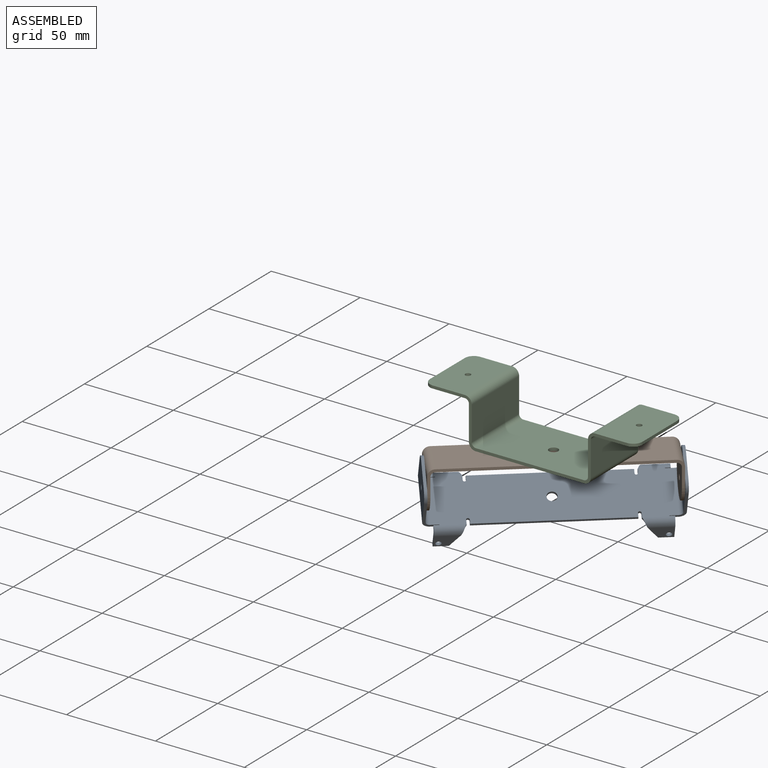
[diagram: assembled view]
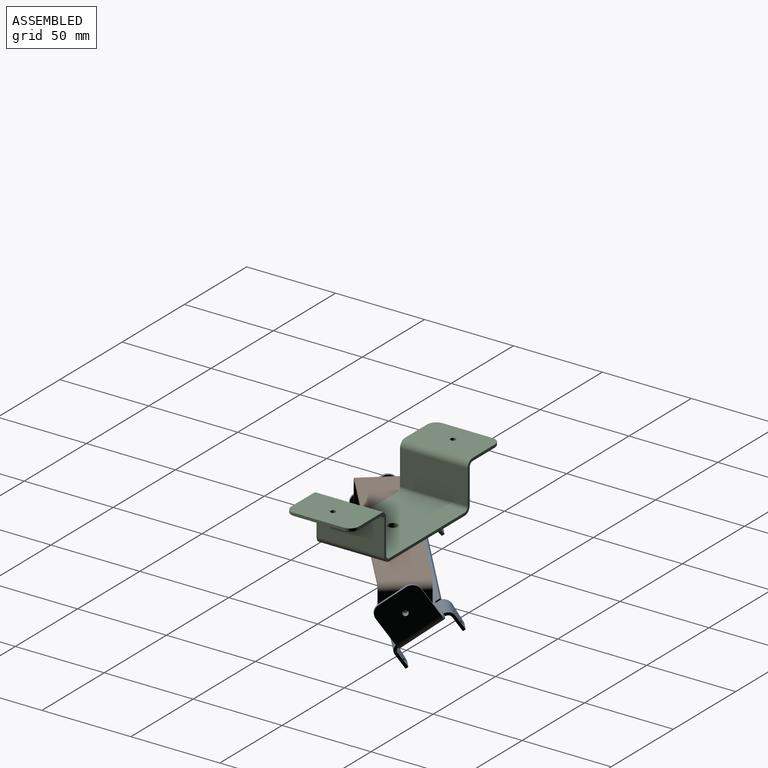
[diagram: assembled view, second angle]
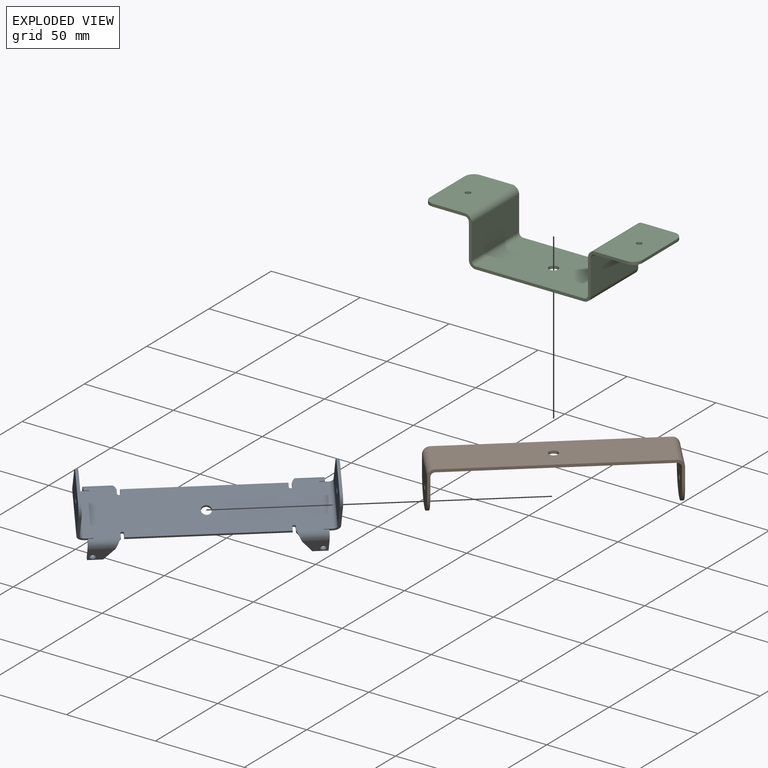
[diagram: exploded view]
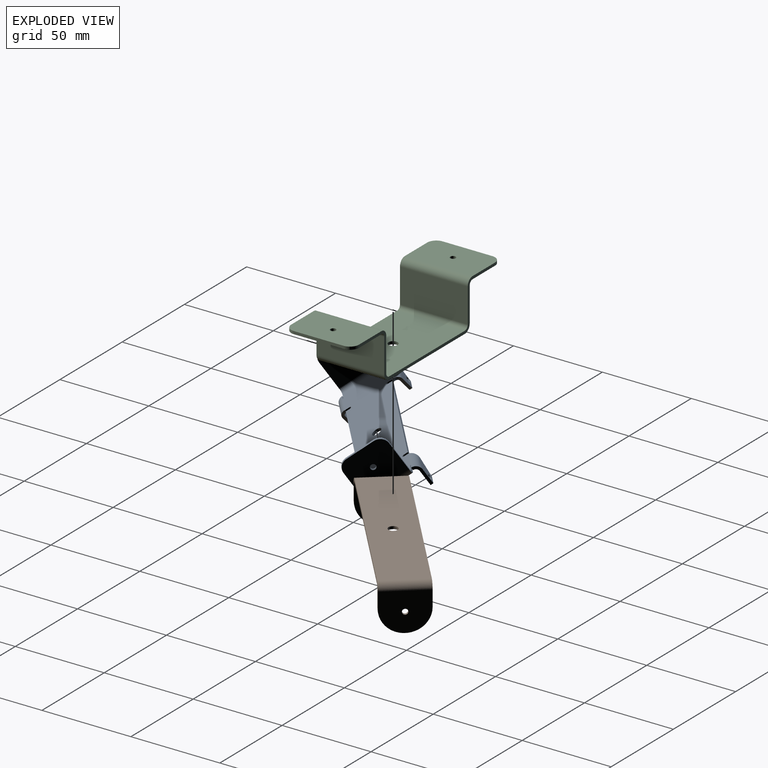
[diagram: exploded view, second angle]
ASSEMBLY  parts=3 mates=2
PART A: 93 faces, bbox 122.4x33.5x36.6 mm
  f0: plane 77.86x1.52mm, normal (0,-1,0), area 118.7mm2, adj f2,f3,f14,f18
  f1: plane 77.86x1.52mm, normal (0,1,0), area 118.7mm2, adj f2,f3,f20,f24
  f2: plane 114.81x25.91mm, normal (0,0,1), area 2930.4mm2, adj f0,f1,f4,f5,f6,f7,f8,f9
  f3: plane 114.81x25.91mm, normal (0,0,-1), area 2930.4mm2, adj f0,f1,f4,f5,f6,f7,f8,f9
  f4: cylinder r=0.81mm len=1.52mm, axis (0,0,1), area 1mm2, adj f2,f3,f5,f78
  f5: plane 3.81x1.52mm, normal (0,-1,0), area 5.8mm2, adj f2,f3,f4,f45
  f6: plane 3.81x1.52mm, normal (0,1,0), area 5.8mm2, adj f2,f3,f7,f46
  f7: cylinder r=0.81mm len=1.52mm, axis (0,0,1), area 1mm2, adj f2,f3,f6,f66
  f8: cylinder r=0.81mm len=1.52mm, axis (0,0,1), area 1mm2, adj f2,f3,f9,f56
  f9: plane 3.81x1.52mm, normal (0,1,0), area 5.8mm2, adj f2,f3,f8,f34
  f10: plane 3.81x1.52mm, normal (0,-1,0), area 5.8mm2, adj f2,f3,f11,f33
  f11: cylinder r=0.81mm len=1.52mm, axis (0,0,1), area 1mm2, adj f2,f3,f10,f88
  f12: cylinder r=2.58mm len=5.16mm, axis (0,0,1), area 24.7mm2, adj f2,f3
  f13: cylinder r=0.81mm len=1.62mm, axis (0,0,-1), area 3.9mm2, adj f2,f3,f14,f15
  f14: plane 2.29x1.52mm, normal (-1,0,0), area 3.5mm2, adj f0,f2,f3,f13
  f15: plane 2.29x1.52mm, normal (1,0,0), area 3.5mm2, adj f2,f3,f13,f90
  f16: cylinder r=0.81mm len=1.62mm, axis (0,0,-1), area 3.9mm2, adj f2,f3,f17,f18
  f17: plane 2.29x1.52mm, normal (-1,0,0), area 3.5mm2, adj f2,f3,f16,f79
  f18: plane 2.29x1.52mm, normal (1,0,0), area 3.5mm2, adj f0,f2,f3,f16
  f19: cylinder r=0.81mm len=1.62mm, axis (0,0,-1), area 3.9mm2, adj f2,f3,f20,f21
  f20: plane 2.29x1.52mm, normal (1,0,0), area 3.5mm2, adj f1,f2,f3,f19
  f21: plane 2.29x1.52mm, normal (-1,0,0), area 3.5mm2, adj f2,f3,f19,f68
  f22: cylinder r=0.81mm len=1.62mm, axis (0,0,-1), area 3.9mm2, adj f2,f3,f23,f24
  f23: plane 2.29x1.52mm, normal (1,0,0), area 3.5mm2, adj f2,f3,f22,f57
  f24: plane 2.29x1.52mm, normal (-1,0,0), area 3.5mm2, adj f1,f2,f3,f22
  f25: plane 16.51x1.52mm, normal (0,1,0), area 25.2mm2, adj f29,f30,f32,f34
  f26: plane 15.24x1.52mm, normal (0,0,1), area 23.2mm2, adj f29,f30,f31,f32
  f27: plane 16.51x1.52mm, normal (0,-1,0), area 25.2mm2, adj f29,f30,f31,f33
  f28: cylinder r=1.52mm len=3.05mm, axis (1,0,0), area 14.6mm2, adj f29,f30
  f29: plane 25.4x21.59mm, normal (1,0,0), area 530mm2, adj f25,f26,f27,f28,f31,f32,f35
  f30: plane 25.4x21.59mm, normal (-1,0,0), area 530mm2, adj f25,f26,f27,f28,f31,f32,f36
  f31: cylinder r=5.08mm len=5.08mm, axis (1,0,0), area 12.2mm2, adj f26,f27,f29,f30
  f32: cylinder r=5.08mm len=5.08mm, axis (1,0,0), area 12.2mm2, adj f25,f26,f29,f30
  f33: plane 3.81x3.81mm, normal (0,-1,0), area 7.3mm2, adj f10,f27,f35,f36
  f34: plane 3.81x3.81mm, normal (0,1,0), area 7.3mm2, adj f9,f25,f35,f36
  f35: cylinder r=2.29mm len=25.4mm, axis (0,-1,0), area 91.2mm2, adj f2,f29,f33,f34
  f36: cylinder r=3.81mm len=25.4mm, axis (0,-1,0), area 152mm2, adj f3,f30,f33,f34
  f37: plane 16.51x1.52mm, normal (0,1,0), area 25.2mm2, adj f41,f42,f44,f46
  f38: plane 16.51x1.52mm, normal (0,-1,0), area 25.2mm2, adj f41,f42,f43,f45
  f39: cylinder r=1.52mm len=3.05mm, axis (-1,0,0), area 14.6mm2, adj f41,f42
  f40: plane 15.24x1.52mm, normal (0,0,1), area 23.2mm2, adj f41,f42,f43,f44
  f41: plane 25.4x21.59mm, normal (-1,0,0), area 530mm2, adj f37,f38,f39,f40,f43,f44,f47
  f42: plane 25.4x21.59mm, normal (1,0,0), area 530mm2, adj f37,f38,f39,f40,f43,f44,f48
  f43: cylinder r=5.08mm len=5.08mm, axis (1,0,0), area 12.2mm2, adj f38,f40,f41,f42
  f44: cylinder r=5.08mm len=5.08mm, axis (1,0,0), area 12.2mm2, adj f37,f40,f41,f42
  f45: plane 3.81x3.81mm, normal (0,-1,0), area 7.3mm2, adj f5,f38,f47,f48
  f46: plane 3.81x3.81mm, normal (0,1,0), area 7.3mm2, adj f6,f37,f47,f48
  f47: cylinder r=2.29mm len=25.4mm, axis (0,-1,0), area 91.2mm2, adj f2,f41,f45,f46
  f48: cylinder r=3.81mm len=25.4mm, axis (0,-1,0), area 152mm2, adj f3,f42,f45,f46
  f49: plane 8.89x1.52mm, normal (-1,0,0), area 13.5mm2, adj f52,f53,f54,f55
  f50: plane 8.89x5.13mm, normal (0.87,0,-0.5), area 15.6mm2, adj f52,f53,f54,f57
  f51: cylinder r=1.52mm len=3.05mm, axis (0,1,0), area 14.6mm2, adj f53,f54
  f52: plane 7.5x1.52mm, normal (0,0,-1), area 11.4mm2, adj f49,f50,f53,f54
  f53: plane 12.63x8.89mm, normal (0,1,0), area 82.2mm2, adj f49,f50,f51,f52,f58
  f54: plane 12.63x8.89mm, normal (0,-1,0), area 82.2mm2, adj f49,f50,f51,f52,f59
  f55: plane 3.81x3.81mm, normal (-1,0,0), area 7.3mm2, adj f49,f56,f58,f59
  f56: plane 2.88x1.52mm, normal (0,-1,0), area 4.4mm2, adj f8,f55,f58,f59
  f57: bspline ~3.81x3.81mm, area 8.4mm2, adj f23,f50,f58,f59
  f58: cylinder r=3.81mm len=15.33mm, axis (-1,0,0), area 83.7mm2, adj f2,f53,f55,f56,f57
  f59: cylinder r=2.29mm len=15.33mm, axis (-1,0,0), area 50.2mm2, adj f3,f54,f55,f56,f57
  f60: plane 8.89x1.52mm, normal (1,0,0), area 13.5mm2, adj f61,f64,f65,f67
  f61: plane 7.5x1.52mm, normal (0,0,-1), area 11.4mm2, adj f60,f62,f64,f65
  f62: plane 8.89x5.13mm, normal (-0.87,0,-0.5), area 15.6mm2, adj f61,f64,f65,f68
  f63: cylinder r=1.52mm len=3.05mm, axis (0,1,0), area 14.6mm2, adj f64,f65
  f64: plane 12.63x8.89mm, normal (0,1,0), area 82.2mm2, adj f60,f61,f62,f63,f69
  f65: plane 12.63x8.89mm, normal (0,-1,0), area 82.2mm2, adj f60,f61,f62,f63,f70
  f66: plane 2.88x1.52mm, normal (0,-1,0), area 4.4mm2, adj f7,f67,f69,f70
  f67: plane 3.81x3.81mm, normal (1,0,0), area 7.3mm2, adj f60,f66,f69,f70
  f68: bspline ~3.81x3.81mm, area 8.4mm2, adj f21,f62,f69,f70
  f69: cylinder r=3.81mm len=15.33mm, axis (-1,0,0), area 83.7mm2, adj f2,f64,f66,f67,f68
  f70: cylinder r=2.29mm len=15.33mm, axis (-1,0,0), area 50.2mm2, adj f3,f65,f66,f67,f68
  f71: plane 7.5x1.52mm, normal (0,0,-1), area 11.4mm2, adj f72,f74,f75,f76
  f72: plane 8.89x1.52mm, normal (1,0,0), area 13.5mm2, adj f71,f75,f76,f77
  f73: cylinder r=1.52mm len=3.05mm, axis (0,-1,0), area 14.6mm2, adj f75,f76
  f74: plane 8.89x5.13mm, normal (-0.87,0,-0.5), area 15.6mm2, adj f71,f75,f76,f79
  f75: plane 12.63x8.89mm, normal (0,-1,0), area 82.2mm2, adj f71,f72,f73,f74,f80
  f76: plane 12.63x8.89mm, normal (0,1,0), area 82.2mm2, adj f71,f72,f73,f74,f81
  f77: plane 3.81x3.81mm, normal (1,0,0), area 7.3mm2, adj f72,f78,f80,f81
  f78: plane 2.88x1.52mm, normal (0,1,0), area 4.4mm2, adj f4,f77,f80,f81
  f79: bspline ~3.81x3.81mm, area 8.4mm2, adj f17,f74,f80,f81
  f80: cylinder r=3.81mm len=15.33mm, axis (1,0,0), area 83.7mm2, adj f2,f75,f77,f78,f79
  f81: cylinder r=2.29mm len=15.33mm, axis (1,0,0), area 50.2mm2, adj f3,f76,f77,f78,f79
  f82: plane 8.89x1.52mm, normal (-1,0,0), area 13.5mm2, adj f83,f86,f87,f89
  f83: plane 7.5x1.52mm, normal (0,0,-1), area 11.4mm2, adj f82,f85,f86,f87
  f84: cylinder r=1.52mm len=3.05mm, axis (0,-1,0), area 14.6mm2, adj f86,f87
  f85: plane 8.89x5.13mm, normal (0.87,0,-0.5), area 15.6mm2, adj f83,f86,f87,f90
  f86: plane 12.63x8.89mm, normal (0,-1,0), area 82.2mm2, adj f82,f83,f84,f85,f91
  f87: plane 12.63x8.89mm, normal (0,1,0), area 82.2mm2, adj f82,f83,f84,f85,f92
  f88: plane 2.88x1.52mm, normal (0,1,0), area 4.4mm2, adj f11,f89,f91,f92
  f89: plane 3.81x3.81mm, normal (-1,0,0), area 7.3mm2, adj f82,f88,f91,f92
  f90: bspline ~3.81x3.81mm, area 8.4mm2, adj f15,f85,f91,f92
  f91: cylinder r=3.81mm len=15.33mm, axis (1,0,0), area 83.7mm2, adj f2,f86,f88,f89,f90
  f92: cylinder r=2.29mm len=15.33mm, axis (1,0,0), area 50.2mm2, adj f3,f87,f88,f89,f90
PART B: 25 faces, bbox 119.4x25.4x25.4 mm
  f0: plane 111.76x1.52mm, normal (0,1,0), area 170.3mm2, adj f3,f4,f12,f22
  f1: plane 111.76x1.52mm, normal (0,-1,0), area 170.3mm2, adj f3,f4,f11,f21
  f2: cylinder r=2.58mm len=5.16mm, axis (0,0,1), area 24.7mm2, adj f3,f4
  f3: plane 111.76x25.4mm, normal (0,0,1), area 2817.8mm2, adj f0,f1,f2,f14,f24
  f4: plane 111.76x25.4mm, normal (0,0,-1), area 2817.8mm2, adj f0,f1,f2,f13,f23
  f5: plane 8.89x1.52mm, normal (0,1,0), area 13.5mm2, adj f8,f9,f10,f12
  f6: plane 8.89x1.52mm, normal (0,-1,0), area 13.5mm2, adj f8,f9,f10,f11
  f7: cylinder r=1.52mm len=3.05mm, axis (1,0,0), area 14.6mm2, adj f8,f9
  f8: plane 25.4x21.59mm, normal (1,0,0), area 471.9mm2, adj f5,f6,f7,f10,f14
  f9: plane 25.4x21.59mm, normal (-1,0,0), area 471.9mm2, adj f5,f6,f7,f10,f13
  f10: cylinder r=12.7mm len=25.4mm, axis (1,0,0), area 60.8mm2, adj f5,f6,f8,f9
  f11: plane 3.81x3.81mm, normal (0,-1,0), area 7.3mm2, adj f1,f6,f13,f14
  f12: plane 3.81x3.81mm, normal (0,1,0), area 7.3mm2, adj f0,f5,f13,f14
  f13: cylinder r=3.81mm len=25.4mm, axis (0,-1,0), area 152mm2, adj f4,f9,f11,f12
  f14: cylinder r=2.29mm len=25.4mm, axis (0,-1,0), area 91.2mm2, adj f3,f8,f11,f12
  f15: plane 8.89x1.52mm, normal (0,1,0), area 13.5mm2, adj f18,f19,f20,f22
  f16: plane 8.89x1.52mm, normal (0,-1,0), area 13.5mm2, adj f18,f19,f20,f21
  f17: cylinder r=1.52mm len=3.05mm, axis (-1,0,0), area 14.6mm2, adj f18,f19
  f18: plane 25.4x21.59mm, normal (-1,0,0), area 471.9mm2, adj f15,f16,f17,f20,f24
  f19: plane 25.4x21.59mm, normal (1,0,0), area 471.9mm2, adj f15,f16,f17,f20,f23
  f20: cylinder r=12.7mm len=25.4mm, axis (1,0,0), area 60.8mm2, adj f15,f16,f18,f19
  f21: plane 3.81x3.81mm, normal (0,-1,0), area 7.3mm2, adj f1,f16,f23,f24
  f22: plane 3.81x3.81mm, normal (0,1,0), area 7.3mm2, adj f0,f15,f23,f24
  f23: cylinder r=3.81mm len=25.4mm, axis (0,-1,0), area 152mm2, adj f4,f19,f21,f22
  f24: cylinder r=2.29mm len=25.4mm, axis (0,-1,0), area 91.2mm2, adj f3,f18,f21,f22
PART C: 45 faces, bbox 119.4x38.1x27 mm
  f0: plane 60.83x1.59mm, normal (0,1,0), area 96.6mm2, adj f3,f4,f22,f42
  f1: plane 60.83x1.59mm, normal (0,-1,0), area 96.6mm2, adj f3,f4,f21,f41
  f2: cylinder r=2.58mm len=5.16mm, axis (0,0,1), area 25.7mm2, adj f3,f4
  f3: plane 60.83x38.1mm, normal (0,0,1), area 2296.9mm2, adj f0,f1,f2,f24,f44
  f4: plane 60.83x38.1mm, normal (0,0,-1), area 2296.9mm2, adj f0,f1,f2,f23,f43
  f5: plane 19.24x1.59mm, normal (0,1,0), area 30.5mm2, adj f7,f8,f18,f22
  f6: plane 19.24x1.59mm, normal (0,-1,0), area 30.5mm2, adj f7,f8,f17,f21
  f7: plane 38.1x19.24mm, normal (1,0,0), area 733.1mm2, adj f5,f6,f19,f24
  f8: plane 38.1x19.24mm, normal (-1,0,0), area 733.1mm2, adj f5,f6,f20,f23
  f9: plane 18.03x1.59mm, normal (0,1,0), area 28.6mm2, adj f13,f14,f16,f18
  f10: plane 27.94x1.59mm, normal (-1,0,0), area 44.4mm2, adj f13,f14,f15,f16
  f11: plane 18.03x1.59mm, normal (0,-1,0), area 28.6mm2, adj f13,f14,f15,f17
  f12: cylinder r=1.52mm len=3.05mm, axis (0,0,1), area 15.2mm2, adj f13,f14
  f13: plane 38.1x23.11mm, normal (0,0,1), area 862.3mm2, adj f9,f10,f11,f12,f15,f16,f19
  f14: plane 38.1x23.11mm, normal (0,0,-1), area 862.3mm2, adj f9,f10,f11,f12,f15,f16,f20
  f15: cylinder r=5.08mm len=5.08mm, axis (0,0,-1), area 12.7mm2, adj f10,f11,f13,f14
  f16: cylinder r=5.08mm len=5.08mm, axis (0,0,1), area 12.7mm2, adj f9,f10,f13,f14
  f17: plane 3.87x3.87mm, normal (0,-1,0), area 7.7mm2, adj f6,f11,f19,f20
  f18: plane 3.87x3.87mm, normal (0,1,0), area 7.7mm2, adj f5,f9,f19,f20
  f19: cylinder r=3.87mm len=38.1mm, axis (0,-1,0), area 231.8mm2, adj f7,f13,f17,f18
  f20: cylinder r=2.29mm len=38.1mm, axis (0,-1,0), area 136.8mm2, adj f8,f14,f17,f18
  f21: plane 3.87x3.87mm, normal (0,-1,0), area 7.7mm2, adj f1,f6,f23,f24
  f22: plane 3.87x3.87mm, normal (0,1,0), area 7.7mm2, adj f0,f5,f23,f24
  f23: cylinder r=3.87mm len=38.1mm, axis (0,-1,0), area 231.8mm2, adj f4,f8,f21,f22
  f24: cylinder r=2.29mm len=38.1mm, axis (0,-1,0), area 136.8mm2, adj f3,f7,f21,f22
  f25: plane 19.24x1.59mm, normal (0,1,0), area 30.5mm2, adj f27,f28,f38,f42
  f26: plane 19.24x1.59mm, normal (0,-1,0), area 30.5mm2, adj f27,f28,f37,f41
  f27: plane 38.1x19.24mm, normal (-1,0,0), area 733.1mm2, adj f25,f26,f39,f44
  f28: plane 38.1x19.24mm, normal (1,0,0), area 733.1mm2, adj f25,f26,f40,f43
  f29: plane 18.03x1.59mm, normal (0,1,0), area 28.6mm2, adj f33,f34,f35,f38
  f30: plane 18.03x1.59mm, normal (0,-1,0), area 28.6mm2, adj f33,f34,f36,f37
  f31: cylinder r=1.52mm len=3.05mm, axis (0,0,1), area 15.2mm2, adj f33,f34
  f32: plane 27.94x1.59mm, normal (1,0,0), area 44.4mm2, adj f33,f34,f35,f36
  f33: plane 38.1x23.11mm, normal (0,0,1), area 862.3mm2, adj f29,f30,f31,f32,f35,f36,f39
  f34: plane 38.1x23.11mm, normal (0,0,-1), area 862.3mm2, adj f29,f30,f31,f32,f35,f36,f40
  f35: cylinder r=5.08mm len=5.08mm, axis (0,0,1), area 12.7mm2, adj f29,f32,f33,f34
  f36: cylinder r=5.08mm len=5.08mm, axis (0,0,-1), area 12.7mm2, adj f30,f32,f33,f34
  f37: plane 3.87x3.87mm, normal (0,-1,0), area 7.7mm2, adj f26,f30,f39,f40
  f38: plane 3.87x3.87mm, normal (0,1,0), area 7.7mm2, adj f25,f29,f39,f40
  f39: cylinder r=3.87mm len=38.1mm, axis (0,-1,0), area 231.8mm2, adj f27,f33,f37,f38
  f40: cylinder r=2.29mm len=38.1mm, axis (0,-1,0), area 136.8mm2, adj f28,f34,f37,f38
  f41: plane 3.87x3.87mm, normal (0,-1,0), area 7.7mm2, adj f1,f26,f43,f44
  f42: plane 3.87x3.87mm, normal (0,1,0), area 7.7mm2, adj f0,f25,f43,f44
  f43: cylinder r=3.87mm len=38.1mm, axis (0,-1,0), area 231.8mm2, adj f4,f28,f41,f42
  f44: cylinder r=2.29mm len=38.1mm, axis (0,-1,0), area 136.8mm2, adj f3,f27,f41,f42
PLACE A rot(axis=(-0.11,0.29,-0.95),141.5deg) t=(-76.04,-15.84,-2.74)mm
PLACE B rot(axis=(0.94,0.34,0),180deg) t=(-70.74,-22.08,23.96)mm
PLACE C t=(-70.74,-22.08,23.96)mm fixed
MATE revolute A.f28 <-> B.f7  axis (0.76,0.65,0) through (-116.24,-60.71,9.35)mm
MATE revolute B.f2 <-> C.f2  axis (0,0,1) through (-70.74,-22.08,23.96)mm
